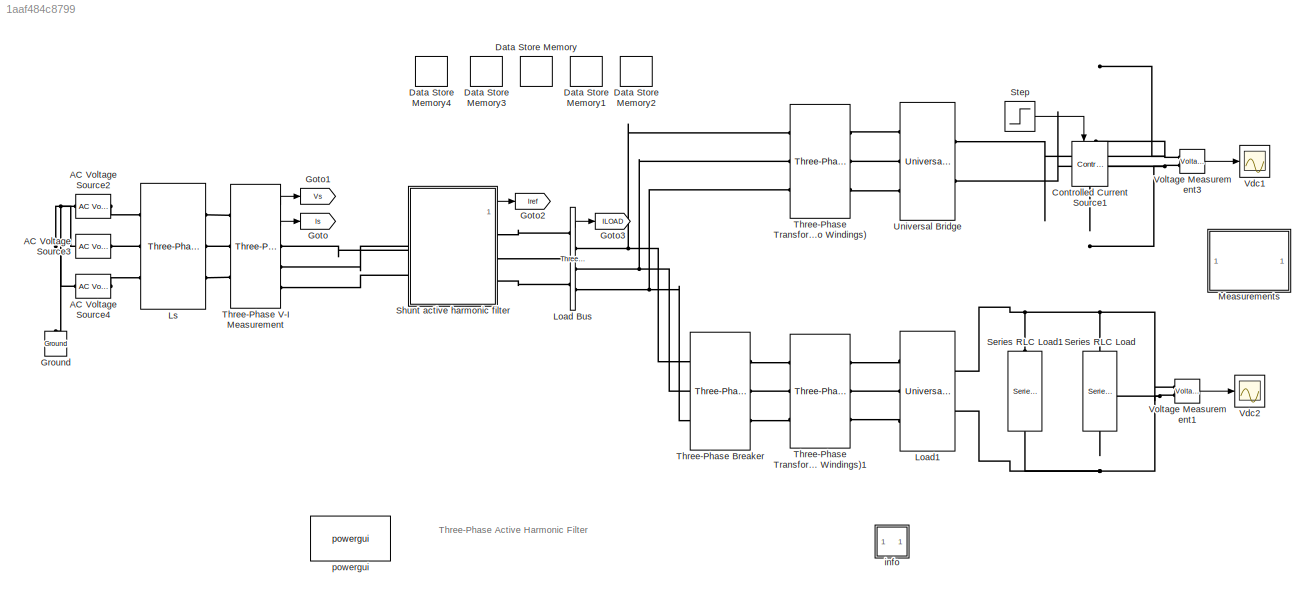
MODEL slx_1aaf484c8799
KIND model
CONFIG AbsTol = auto
CONFIG EnableMultiTasking = off
CONFIG FixedStep = auto
CONFIG MaxStep = auto
CONFIG MinStep = auto
CONFIG RelTol = 1e-3
CONFIG SampleTimeConstraint = Unconstrained
CONFIG Solver = VariableStepAuto
CONFIG SolverName = VariableStepAuto
CONFIG StartTime = 0.0
CONFIG StopTime = 0.5
BLOCK [Reference] AC Voltage Source2  REF=powerlib/Electrical
Sources/AC Voltage Source
  Ports = [0, 0, 0, 0, 0, 1, 1]
  SourceBlock = powerlib/Electrical\nSources/AC Voltage Source
  SourceProductBaseCode = PS
  SourceProductName = Simscape Electrical
  SourceType = AC Voltage Source
BLOCK [Reference] AC Voltage Source3  REF=powerlib/Electrical
Sources/AC Voltage Source
  Ports = [0, 0, 0, 0, 0, 1, 1]
  SourceBlock = powerlib/Electrical\nSources/AC Voltage Source
  SourceProductBaseCode = PS
  SourceProductName = Simscape Electrical
  SourceType = AC Voltage Source
BLOCK [Reference] AC Voltage Source4  REF=powerlib/Electrical
Sources/AC Voltage Source
  Ports = [0, 0, 0, 0, 0, 1, 1]
  SourceBlock = powerlib/Electrical\nSources/AC Voltage Source
  SourceProductBaseCode = PS
  SourceProductName = Simscape Electrical
  SourceType = AC Voltage Source
BLOCK [Reference] Controlled Current Source1  REF=powerlib/Electrical
Sources/Controlled Current Source
  Ports = [1, 0, 0, 0, 0, 1, 1]
  SourceBlock = powerlib/Electrical\nSources/Controlled Current Source
  SourceProductBaseCode = PS
  SourceProductName = Simscape Electrical
  SourceType = Controlled Current Source
BLOCK [DataStoreMemory] Data Store Memory
  DataStoreName = L
  InitialValue = L
  OutDataTypeStr = double
  ReadBeforeWriteMsg = warning
  ShowAdditionalParam = off
  SignalType = real
  WriteAfterReadMsg = warning
  WriteAfterWriteMsg = warning
BLOCK [DataStoreMemory] Data Store Memory1
  DataStoreName = Ts
  InitialValue = Ts
  OutDataTypeStr = double
  ReadBeforeWriteMsg = warning
  ShowAdditionalParam = off
  SignalType = real
  WriteAfterReadMsg = warning
  WriteAfterWriteMsg = warning
BLOCK [DataStoreMemory] Data Store Memory2
  DataStoreName = states
  InitialValue = states
  OutDataTypeStr = double
  ReadBeforeWriteMsg = warning
  ShowAdditionalParam = off
  SignalType = real
  VectorParams1D = off
  WriteAfterReadMsg = warning
  WriteAfterWriteMsg = warning
BLOCK [DataStoreMemory] Data Store Memory3
  DataStoreName = v
  InitialValue = v
  OutDataTypeStr = double
  ReadBeforeWriteMsg = warning
  ShowAdditionalParam = off
  SignalType = complex
  WriteAfterReadMsg = warning
  WriteAfterWriteMsg = warning
BLOCK [DataStoreMemory] Data Store Memory4
  DataStoreName = R
  InitialValue = R
  OutDataTypeStr = double
  ReadBeforeWriteMsg = warning
  ShowAdditionalParam = off
  SignalType = real
  WriteAfterReadMsg = warning
  WriteAfterWriteMsg = warning
BLOCK [Goto] Goto
  GotoTag = Is
  TagVisibility = global
BLOCK [Goto] Goto1
  GotoTag = Vs
  TagVisibility = global
BLOCK [Goto] Goto2
  GotoTag = Iref
  TagVisibility = global
BLOCK [Goto] Goto3
  GotoTag = ILOAD
  TagVisibility = global
BLOCK [Reference] Ground  REF=powerlib/Elements/Ground
  Ports = [0, 0, 0, 0, 0, 1]
  SourceBlock = powerlib/Elements/Ground
  SourceProductBaseCode = PS
  SourceProductName = Simscape Electrical
  SourceType = Ground
BLOCK [Reference] Load Bus  REF=powerlib/Measurements/Three-Phase
V-I Measurement
  Ports = [0, 1, 0, 0, 0, 3, 3]
  SourceBlock = powerlib/Measurements/Three-Phase\nV-I Measurement
  SourceProductBaseCode = PS
  SourceProductName = Simscape Electrical
  SourceType = Three-Phase VI Measurement
BLOCK [Reference] Load1  REF=powerlib/Power
Electronics/Universal Bridge
  Ports = [0, 0, 0, 0, 0, 3, 2]
  SourceBlock = powerlib/Power\nElectronics/Universal Bridge
  SourceProductBaseCode = PS
  SourceProductName = Simscape Electrical
  SourceType = Universal Bridge
BLOCK [Reference] Ls  REF=powerlib/Elements/Three-Phase
Series RLC Branch
  AttributesFormatString = \n
  Ports = [0, 0, 0, 0, 0, 3, 3]
  SourceBlock = powerlib/Elements/Three-Phase\nSeries RLC Branch
  SourceProductBaseCode = PS
  SourceProductName = Simscape Electrical
  SourceType = Three-Phase Series RLC Branch
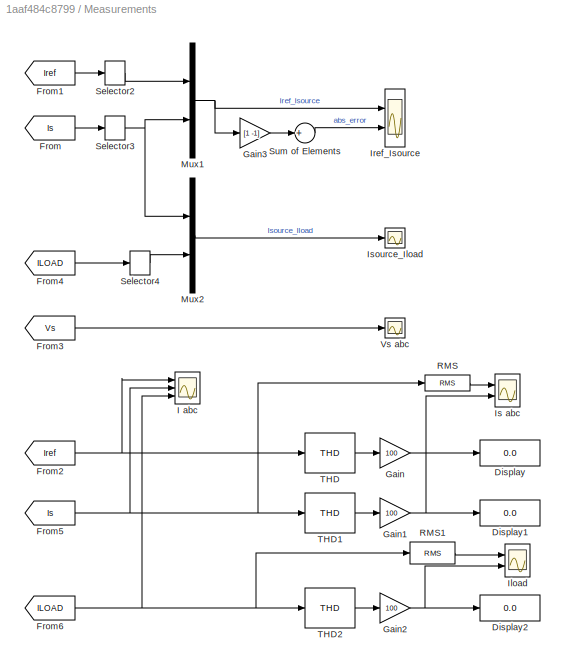
BLOCK [SubSystem] Measurements
  Ports = []
  RequestExecContextInheritance = off
BLOCK [Display] Measurements/Display
  Decimation = 1
  Ports = [1]
BLOCK [Display] Measurements/Display1
  Decimation = 2
  Ports = [1]
BLOCK [Display] Measurements/Display2
  Decimation = 2
  Ports = [1]
BLOCK [From] Measurements/From
  CloseFcn = tagdialog Close
  GotoTag = Is
  TagVisibility = global
BLOCK [From] Measurements/From1
  CloseFcn = tagdialog Close
  GotoTag = Iref
  TagVisibility = global
BLOCK [From] Measurements/From2
  CloseFcn = tagdialog Close
  GotoTag = Iref
  TagVisibility = global
BLOCK [From] Measurements/From3
  CloseFcn = tagdialog Close
  GotoTag = Vs
  TagVisibility = global
BLOCK [From] Measurements/From4
  CloseFcn = tagdialog Close
  GotoTag = ILOAD
  TagVisibility = global
BLOCK [From] Measurements/From5
  CloseFcn = tagdialog Close
  GotoTag = Is
  TagVisibility = global
BLOCK [From] Measurements/From6
  CloseFcn = tagdialog Close
  GotoTag = ILOAD
  TagVisibility = global
BLOCK [Gain] Measurements/Gain
  Gain = 100
  OutDataTypeStr = Inherit: Inherit via internal rule
  ParamDataTypeStr = Inherit: Inherit via internal rule
  SaturateOnIntegerOverflow = off
BLOCK [Gain] Measurements/Gain1
  Gain = 100
  OutDataTypeStr = Inherit: Inherit via internal rule
  ParamDataTypeStr = Inherit: Inherit via internal rule
  SaturateOnIntegerOverflow = off
BLOCK [Gain] Measurements/Gain2
  Gain = 100
  OutDataTypeStr = Inherit: Inherit via internal rule
  ParamDataTypeStr = Inherit: Inherit via internal rule
  SaturateOnIntegerOverflow = off
BLOCK [Gain] Measurements/Gain3
  Gain = [1 -1]
  OutDataTypeStr = Inherit: Inherit via internal rule
  ParamDataTypeStr = Inherit: Inherit via internal rule
  SaturateOnIntegerOverflow = off
BLOCK [Scope] Measurements/I abc
  Floating = off
  NumInputPorts = 3
  Ports = [3]
  ScopeSpecificationString = Simulink.scopes.TimeScopeBlockCfg('CurrentConfiguration', extmgr.ConfigurationSet(extmgr.Configuration('Core','General UI',true),extmgr.Configuration('Core','Source UI',true),extmgr.Configuration('Sources','WiredSimulink',true,'DataLoggingSaveFormat','Array','DataLoggingDecimation','1','DataLoggingDecimateData',true,'DataLoggingVariableName','ScopeData1'),extmgr.Configuration('Visuals','Time Domai...<+3500ch>
BLOCK [Scope] Measurements/Iload
  Floating = off
  NumInputPorts = 2
  Ports = [2]
  ScopeSpecificationString = Simulink.scopes.TimeScopeBlockCfg('CurrentConfiguration', extmgr.ConfigurationSet(extmgr.Configuration('Core','General UI',true),extmgr.Configuration('Core','Source UI',true),extmgr.Configuration('Sources','WiredSimulink',true,'DataLoggingSaveFormat','Array','DataLoggingDecimation','1','DataLoggingDecimateData',true,'DataLoggingVariableName','ScopeData2'),extmgr.Configuration('Visuals','Time Domai...<+2724ch>
BLOCK [Scope] Measurements/Iref_Isource
  Floating = off
  NumInputPorts = 2
  Ports = [2]
  ScopeSpecificationString = Simulink.scopes.TimeScopeBlockCfg('CurrentConfiguration', extmgr.ConfigurationSet(extmgr.Configuration('Core','General UI',true),extmgr.Configuration('Core','Source UI',true),extmgr.Configuration('Sources','WiredSimulink',true,'DataLoggingSaveFormat','Array','DataLoggingDecimation','1','DataLoggingDecimateData',true),extmgr.Configuration('Visuals','Time Domain',true,'SerializedDisplays',{struct('M...<+2347ch>
BLOCK [Scope] Measurements/Is abc
  Floating = off
  NumInputPorts = 2
  Ports = [2]
  ScopeSpecificationString = Simulink.scopes.TimeScopeBlockCfg('CurrentConfiguration', extmgr.ConfigurationSet(extmgr.Configuration('Core','General UI',true),extmgr.Configuration('Core','Source UI',true),extmgr.Configuration('Sources','WiredSimulink',true,'DataLoggingSaveFormat','Array','DataLoggingDecimation','1','DataLoggingDecimateData',true,'DataLoggingVariableName','ScopeData1'),extmgr.Configuration('Visuals','Time Domai...<+2724ch>
BLOCK [Scope] Measurements/Isource_Iload
  Floating = off
  NumInputPorts = 1
  Ports = [1]
  ScopeSpecificationString = Simulink.scopes.TimeScopeBlockCfg('CurrentConfiguration', extmgr.ConfigurationSet(extmgr.Configuration('Core','General UI',true),extmgr.Configuration('Core','Source UI',true),extmgr.Configuration('Sources','WiredSimulink',true,'DataLoggingSaveFormat','Array','DataLoggingDecimation','1','DataLoggingDecimateData',true),extmgr.Configuration('Visuals','Time Domain',true,'SerializedDisplays',{struct('M...<+1666ch>
BLOCK [Mux] Measurements/Mux1
  DisplayOption = bar
  Inputs = 2
  Ports = [2, 1]
BLOCK [Mux] Measurements/Mux2
  DisplayOption = bar
  Inputs = 2
  Ports = [2, 1]
BLOCK [Reference] Measurements/RMS  REF=dspstat3/RMS
  Ports = [1, 1]
  SourceBlock = dspstat3/RMS
  SourceProductBaseCode = DS
  SourceProductName = DSP System Toolbox
  SourceType = RMS
  UserDataPersistent = on
BLOCK [Reference] Measurements/RMS1  REF=dspstat3/RMS
  Ports = [1, 1]
  SourceBlock = dspstat3/RMS
  SourceProductBaseCode = DS
  SourceProductName = DSP System Toolbox
  SourceType = RMS
  UserDataPersistent = on
BLOCK [Selector] Measurements/Selector2
  IndexOptions = Index vector (dialog)
  Indices = 1
  InputPortWidth = 3
  OutputSizes = 1
  Ports = [1, 1]
BLOCK [Selector] Measurements/Selector3
  IndexOptions = Index vector (dialog)
  Indices = 1
  InputPortWidth = 3
  OutputSizes = 1
  Ports = [1, 1]
BLOCK [Selector] Measurements/Selector4
  IndexOptions = Index vector (dialog)
  Indices = 1
  InputPortWidth = 3
  OutputSizes = 1
  Ports = [1, 1]
BLOCK [Sum] Measurements/Sum of Elements
  InputSameDT = off
  Inputs = +
  OutDataTypeStr = Inherit: Inherit via internal rule
  Ports = [1, 1]
  SaturateOnIntegerOverflow = off
BLOCK [Reference] Measurements/THD  REF=powerlib_meascontrol/Measurements/THD
  Ports = [1, 1]
  SourceBlock = powerlib_meascontrol/Measurements/THD
  SourceProductBaseCode = PS
  SourceProductName = Simscape Electrical
  SourceType = THD
BLOCK [Reference] Measurements/THD1  REF=powerlib_meascontrol/Measurements/THD
  Ports = [1, 1]
  SourceBlock = powerlib_meascontrol/Measurements/THD
  SourceProductBaseCode = PS
  SourceProductName = Simscape Electrical
  SourceType = THD
BLOCK [Reference] Measurements/THD2  REF=powerlib_meascontrol/Measurements/THD
  Ports = [1, 1]
  SourceBlock = powerlib_meascontrol/Measurements/THD
  SourceProductBaseCode = PS
  SourceProductName = Simscape Electrical
  SourceType = THD
BLOCK [Scope] Measurements/Vs abc
  Floating = off
  NumInputPorts = 1
  Ports = [1]
  ScopeSpecificationString = Simulink.scopes.TimeScopeBlockCfg('CurrentConfiguration', extmgr.ConfigurationSet(extmgr.Configuration('Core','General UI',true),extmgr.Configuration('Core','Source UI',true),extmgr.Configuration('Sources','WiredSimulink',true,'DataLoggingSaveFormat','Array','DataLoggingDecimation','1','DataLoggingDecimateData',true),extmgr.Configuration('Visuals','Time Domain',true,'SerializedDisplays',{struct('M...<+1658ch>
BLOCK [Reference] Series RLC Load  REF=powerlib/Elements/Series RLC Load
  AttributesFormatString = \n
  Ports = [0, 0, 0, 0, 0, 1, 1]
  SourceBlock = powerlib/Elements/Series RLC Load
  SourceProductBaseCode = PS
  SourceProductName = Simscape Electrical
  SourceType = Series RLC Load
BLOCK [Reference] Series RLC Load1  REF=powerlib/Elements/Series RLC Load
  AttributesFormatString = \n
  Ports = [0, 0, 0, 0, 0, 1, 1]
  SourceBlock = powerlib/Elements/Series RLC Load
  SourceProductBaseCode = PS
  SourceProductName = Simscape Electrical
  SourceType = Series RLC Load
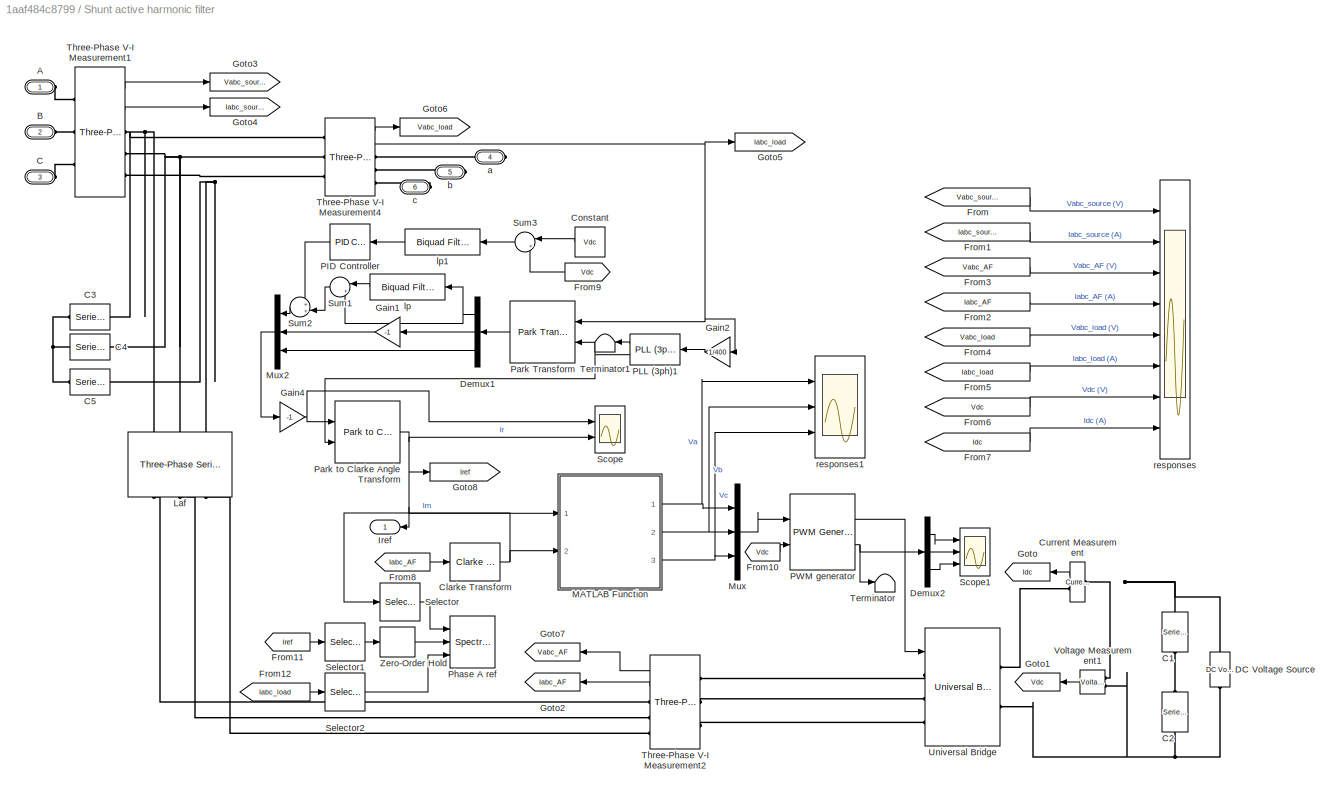
BLOCK [SubSystem] Shunt active harmonic filter
  Ports = [0, 1, 0, 0, 0, 3, 3]
  RequestExecContextInheritance = off
BLOCK [PMIOPort] Shunt active harmonic filter/A
  Side = Left
BLOCK [PMIOPort] Shunt active harmonic filter/B
  Port = 2
  Side = Left
BLOCK [PMIOPort] Shunt active harmonic filter/C
  Port = 3
  Side = Left
BLOCK [Reference] Shunt active harmonic filter/C1  REF=powerlib/Elements/Series RLC Branch
  Ports = [0, 0, 0, 0, 0, 1, 1]
  SourceBlock = powerlib/Elements/Series RLC Branch
  SourceProductBaseCode = PS
  SourceProductName = Simscape Electrical
  SourceType = Series RLC Branch
BLOCK [Reference] Shunt active harmonic filter/C2  REF=powerlib/Elements/Series RLC Branch
  Ports = [0, 0, 0, 0, 0, 1, 1]
  SourceBlock = powerlib/Elements/Series RLC Branch
  SourceProductBaseCode = PS
  SourceProductName = Simscape Electrical
  SourceType = Series RLC Branch
BLOCK [Reference] Shunt active harmonic filter/C3  REF=powerlib/Elements/Series RLC Branch
  Ports = [0, 0, 0, 0, 0, 1, 1]
  SourceBlock = powerlib/Elements/Series RLC Branch
  SourceProductBaseCode = PS
  SourceProductName = Simscape Electrical
  SourceType = Series RLC Branch
BLOCK [Reference] Shunt active harmonic filter/C4  REF=powerlib/Elements/Series RLC Branch
  Ports = [0, 0, 0, 0, 0, 1, 1]
  SourceBlock = powerlib/Elements/Series RLC Branch
  SourceProductBaseCode = PS
  SourceProductName = Simscape Electrical
  SourceType = Series RLC Branch
BLOCK [Reference] Shunt active harmonic filter/C5  REF=powerlib/Elements/Series RLC Branch
  Ports = [0, 0, 0, 0, 0, 1, 1]
  SourceBlock = powerlib/Elements/Series RLC Branch
  SourceProductBaseCode = PS
  SourceProductName = Simscape Electrical
  SourceType = Series RLC Branch
BLOCK [Reference] Shunt active harmonic filter/Clarke Transform  REF=eeTransforms/Clarke Transform
  Ports = [1, 1]
  SourceBlock = eeTransforms/Clarke Transform
  SourceProductBaseCode = PS
  SourceProductName = Simscape Electrical
  SourceType = Clarke Transform
BLOCK [Constant] Shunt active harmonic filter/Constant
  Value = Vdc
BLOCK [Reference] Shunt active harmonic filter/Current Measurement  REF=powerlib/Measurements/Current Measurement
  Ports = [0, 1, 0, 0, 0, 1, 1]
  SourceBlock = powerlib/Measurements/Current Measurement
  SourceProductBaseCode = PS
  SourceProductName = Simscape Electrical
  SourceType = Current Measurement
BLOCK [Reference] Shunt active harmonic filter/DC Voltage Source  REF=powerlib/Electrical
Sources/DC Voltage Source
  Commented = on
  Ports = [0, 0, 0, 0, 0, 1, 1]
  SourceBlock = powerlib/Electrical\nSources/DC Voltage Source
  SourceProductBaseCode = PS
  SourceProductName = Simscape Electrical
  SourceType = DC Voltage Source
BLOCK [Demux] Shunt active harmonic filter/Demux1
  DisplayOption = bar
  Outputs = 3
  Ports = [1, 3]
BLOCK [Demux] Shunt active harmonic filter/Demux2
  DisplayOption = bar
  Outputs = 3
  Ports = [1, 3]
BLOCK [From] Shunt active harmonic filter/From
  CloseFcn = tagdialog Close
  GotoTag = Vabc_source
BLOCK [From] Shunt active harmonic filter/From1
  CloseFcn = tagdialog Close
  GotoTag = Iabc_source
BLOCK [From] Shunt active harmonic filter/From10
  GotoTag = Vdc
  TagVisibility = global
BLOCK [From] Shunt active harmonic filter/From11
  GotoTag = Iref
BLOCK [From] Shunt active harmonic filter/From12
  GotoTag = Iabc_load
BLOCK [From] Shunt active harmonic filter/From2
  CloseFcn = tagdialog Close
  GotoTag = Iabc_AF
BLOCK [From] Shunt active harmonic filter/From3
  CloseFcn = tagdialog Close
  GotoTag = Vabc_AF
BLOCK [From] Shunt active harmonic filter/From4
  CloseFcn = tagdialog Close
  GotoTag = Vabc_load
BLOCK [From] Shunt active harmonic filter/From5
  CloseFcn = tagdialog Close
  GotoTag = Iabc_load
BLOCK [From] Shunt active harmonic filter/From6
  CloseFcn = tagdialog Close
  GotoTag = Vdc
  TagVisibility = global
BLOCK [From] Shunt active harmonic filter/From7
  CloseFcn = tagdialog Close
  GotoTag = Idc
BLOCK [From] Shunt active harmonic filter/From8
  GotoTag = Iabc_AF
BLOCK [From] Shunt active harmonic filter/From9
  GotoTag = Vdc
  TagVisibility = global
BLOCK [Gain] Shunt active harmonic filter/Gain1
  Gain = -1
  OutDataTypeStr = Inherit: Inherit via internal rule
  ParamDataTypeStr = Inherit: Inherit via internal rule
  SaturateOnIntegerOverflow = off
BLOCK [Gain] Shunt active harmonic filter/Gain2
  Gain = 1/400
  OutDataTypeStr = Inherit: Inherit via internal rule
  ParamDataTypeStr = Inherit: Inherit via internal rule
  SaturateOnIntegerOverflow = off
BLOCK [Gain] Shunt active harmonic filter/Gain4
  Gain = -1
  OutDataTypeStr = Inherit: Inherit via internal rule
  ParamDataTypeStr = Inherit: Inherit via internal rule
  SaturateOnIntegerOverflow = off
BLOCK [Goto] Shunt active harmonic filter/Goto
  GotoTag = Idc
BLOCK [Goto] Shunt active harmonic filter/Goto1
  GotoTag = Vdc
  TagVisibility = global
BLOCK [Goto] Shunt active harmonic filter/Goto2
  GotoTag = Iabc_AF
BLOCK [Goto] Shunt active harmonic filter/Goto3
  GotoTag = Vabc_source
BLOCK [Goto] Shunt active harmonic filter/Goto4
  GotoTag = Iabc_source
BLOCK [Goto] Shunt active harmonic filter/Goto5
  GotoTag = Iabc_load
BLOCK [Goto] Shunt active harmonic filter/Goto6
  GotoTag = Vabc_load
BLOCK [Goto] Shunt active harmonic filter/Goto7
  GotoTag = Vabc_AF
BLOCK [Goto] Shunt active harmonic filter/Goto8
  GotoTag = Iref
BLOCK [Outport] Shunt active harmonic filter/Iref
  IconDisplay = Port number
BLOCK [Reference] Shunt active harmonic filter/Laf  REF=powerlib/Elements/Three-Phase
Series RLC Branch
  AttributesFormatString = \n
  Ports = [0, 0, 0, 0, 0, 3, 3]
  SourceBlock = powerlib/Elements/Three-Phase\nSeries RLC Branch
  SourceProductBaseCode = PS
  SourceProductName = Simscape Electrical
  SourceType = Three-Phase Series RLC Branch
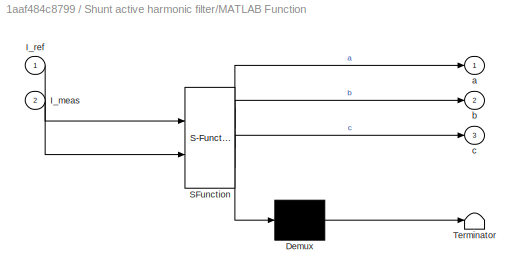
BLOCK [SubSystem] Shunt active harmonic filter/MATLAB Function
  ErrorFcn = Stateflow.Translate.translate
  PermitHierarchicalResolution = ExplicitOnly
  Ports = [2, 3]
  RequestExecContextInheritance = off
  SFBlockType = MATLAB Function
  SystemSampleTime = Ts
  TreatAsAtomicUnit = on
BLOCK [Demux] Shunt active harmonic filter/MATLAB Function/ Demux 
  Outputs = 1
  Ports = [1, 1]
BLOCK [S-Function] Shunt active harmonic filter/MATLAB Function/ SFunction 
  EnableBusSupport = on
  FunctionName = sf_sfun
  PortCounts = [2 4]
  Ports = [2, 4]
  SFcnIsStateOwnerBlock = off
  SFunctionDeploymentMode = off
  Tag = Stateflow S-Function power_active_filter_mpc 2
BLOCK [Terminator] Shunt active harmonic filter/MATLAB Function/ Terminator 
BLOCK [Inport] Shunt active harmonic filter/MATLAB Function/I_meas
  IconDisplay = Port number
  Port = 2
BLOCK [Inport] Shunt active harmonic filter/MATLAB Function/I_ref
  IconDisplay = Port number
BLOCK [Outport] Shunt active harmonic filter/MATLAB Function/a
  IconDisplay = Port number
BLOCK [Outport] Shunt active harmonic filter/MATLAB Function/b
  IconDisplay = Port number
  Port = 2
BLOCK [Outport] Shunt active harmonic filter/MATLAB Function/c
  IconDisplay = Port number
  Port = 3
BLOCK [Mux] Shunt active harmonic filter/Mux
  DisplayOption = bar
  Inputs = 3
  Ports = [3, 1]
BLOCK [Mux] Shunt active harmonic filter/Mux2
  DisplayOption = bar
  Inputs = 3
  Ports = [3, 1]
BLOCK [Reference] Shunt active harmonic filter/PID Controller  REF=simulink/Continuous/PID Controller
  Ports = [1, 1]
  SourceBlock = simulink/Continuous/PID Controller
  SourceProductBaseCode = SL
  SourceProductName = Simulink
  SourceType = PID 1dof
BLOCK [Reference] Shunt active harmonic filter/PLL (3ph)1  REF=powerlib_meascontrol/PLL/PLL
(3ph)
  Ports = [1, 2]
  SourceBlock = powerlib_meascontrol/PLL/PLL\n(3ph)
  SourceProductBaseCode = PS
  SourceProductName = Simscape Electrical
  SourceType = PLL (3ph)
BLOCK [Reference] Shunt active harmonic filter/PWM generator  REF=eePwmGeneratorTwoLevel/PWM Generator
(Three-phase, Two-level)
  Ports = [2, 2]
  SourceBlock = eePwmGeneratorTwoLevel/PWM Generator\n(Three-phase, Two-level)
  SourceProductBaseCode = PS
  SourceProductName = Simscape Electrical
  SourceType = PWM Generator (three-phase, two-level)
BLOCK [Reference] Shunt active harmonic filter/Park Transform  REF=eeTransforms/Park Transform
  Ports = [2, 1]
  SourceBlock = eeTransforms/Park Transform
  SourceProductBaseCode = PS
  SourceProductName = Simscape Electrical
  SourceType = Park Transform
BLOCK [Reference] Shunt active harmonic filter/Park to Clarke Angle Transform  REF=eeTransforms/Park to Clarke
Angle Transform
  Ports = [2, 1]
  SourceBlock = eeTransforms/Park to Clarke\nAngle Transform
  SourceProductBaseCode = PS
  SourceProductName = Simscape Electrical
  SourceType = Park to Clarke Angle Transform
BLOCK [SpectrumAnalyzer] Shunt active harmonic filter/Phase A ref
  Commented = on
  NumInputPorts = 3
  Ports = [3]
  ScopeSpecificationString = spbscopes.SpectrumAnalyzerBlockCfg('CurrentConfiguration', extmgr.ConfigurationSet(extmgr.Configuration('Core','General UI',true),extmgr.Configuration('Core','Source UI',true),extmgr.Configuration('Sources','WiredSimulink',true),extmgr.Configuration('Sources','SimulinkEvent',false),extmgr.Configuration('Sources','Simulink',false),extmgr.Configuration('Sources','SPTool',false),extmgr.Configuration(...<+4658ch>
BLOCK [Scope] Shunt active harmonic filter/Scope
  Floating = off
  NumInputPorts = 2
  Ports = [2]
  ScopeSpecificationString = Simulink.scopes.TimeScopeBlockCfg('CurrentConfiguration', extmgr.ConfigurationSet(extmgr.Configuration('Core','General UI',true),extmgr.Configuration('Core','Source UI',true),extmgr.Configuration('Sources','WiredSimulink',true,'DataLoggingVariableName','ScopeData1'),extmgr.Configuration('Visuals','Time Domain',true,'SerializedDisplays',{struct('MinYLimReal','-1.00000','MaxYLimReal','1.00000','YLab...<+3240ch>
BLOCK [Scope] Shunt active harmonic filter/Scope1
  Floating = off
  NumInputPorts = 3
  Ports = [3]
  ScopeSpecificationString = Simulink.scopes.TimeScopeBlockCfg('CurrentConfiguration', extmgr.ConfigurationSet(extmgr.Configuration('Core','General UI',true),extmgr.Configuration('Core','Source UI',true),extmgr.Configuration('Sources','WiredSimulink',true,'DataLoggingVariableName','ScopeData1'),extmgr.Configuration('Visuals','Time Domain',true,'SerializedDisplays',{struct('MinYLimReal','-1.25','MaxYLimReal','1.25','YLabelReal...<+3175ch>
BLOCK [Selector] Shunt active harmonic filter/Selector
  IndexOptions = Index vector (dialog)
  Indices = 1
  InputPortWidth = 3
  OutputSizes = 1
  Ports = [1, 1]
BLOCK [Selector] Shunt active harmonic filter/Selector1
  IndexOptions = Index vector (dialog)
  Indices = 1
  InputPortWidth = 3
  OutputSizes = 1
  Ports = [1, 1]
BLOCK [Selector] Shunt active harmonic filter/Selector2
  IndexOptions = Index vector (dialog)
  Indices = 1
  InputPortWidth = 3
  OutputSizes = 1
  Ports = [1, 1]
BLOCK [Sum] Shunt active harmonic filter/Sum1
  IconShape = round
  InputSameDT = off
  Inputs = |+-
  OutDataTypeStr = Inherit: Inherit via internal rule
  Ports = [2, 1]
  SaturateOnIntegerOverflow = off
BLOCK [Sum] Shunt active harmonic filter/Sum2
  IconShape = round
  InputSameDT = off
  Inputs = ++|
  OutDataTypeStr = Inherit: Inherit via internal rule
  Ports = [2, 1]
  SaturateOnIntegerOverflow = off
BLOCK [Sum] Shunt active harmonic filter/Sum3
  IconShape = round
  InputSameDT = off
  Inputs = |+-
  OutDataTypeStr = Inherit: Inherit via internal rule
  Ports = [2, 1]
  SaturateOnIntegerOverflow = off
BLOCK [Terminator] Shunt active harmonic filter/Terminator
BLOCK [Terminator] Shunt active harmonic filter/Terminator1
BLOCK [Reference] Shunt active harmonic filter/Three-Phase V-I Measurement1  REF=powerlib/Measurements/Three-Phase
V-I Measurement
  Ports = [0, 2, 0, 0, 0, 3, 3]
  SourceBlock = powerlib/Measurements/Three-Phase\nV-I Measurement
  SourceProductBaseCode = PS
  SourceProductName = Simscape Electrical
  SourceType = Three-Phase VI Measurement
BLOCK [Reference] Shunt active harmonic filter/Three-Phase V-I Measurement2  REF=powerlib/Measurements/Three-Phase
V-I Measurement
  Ports = [0, 2, 0, 0, 0, 3, 3]
  SourceBlock = powerlib/Measurements/Three-Phase\nV-I Measurement
  SourceProductBaseCode = PS
  SourceProductName = Simscape Electrical
  SourceType = Three-Phase VI Measurement
BLOCK [Reference] Shunt active harmonic filter/Three-Phase V-I Measurement4  REF=powerlib/Measurements/Three-Phase
V-I Measurement
  Ports = [0, 2, 0, 0, 0, 3, 3]
  SourceBlock = powerlib/Measurements/Three-Phase\nV-I Measurement
  SourceProductBaseCode = PS
  SourceProductName = Simscape Electrical
  SourceType = Three-Phase VI Measurement
BLOCK [Reference] Shunt active harmonic filter/Universal Bridge  REF=powerlib/Power
Electronics/Universal Bridge
  Ports = [1, 0, 0, 0, 0, 3, 2]
  SourceBlock = powerlib/Power\nElectronics/Universal Bridge
  SourceProductBaseCode = PS
  SourceProductName = Simscape Electrical
  SourceType = Universal Bridge
BLOCK [Reference] Shunt active harmonic filter/Voltage Measurement1  REF=powerlib/Measurements/Voltage Measurement
  Ports = [0, 1, 0, 0, 0, 2]
  SourceBlock = powerlib/Measurements/Voltage Measurement
  SourceProductBaseCode = PS
  SourceProductName = Simscape Electrical
  SourceType = Voltage Measurement
BLOCK [ZeroOrderHold] Shunt active harmonic filter/Zero-Order Hold
  SampleTime = -1
BLOCK [PMIOPort] Shunt active harmonic filter/a
  Port = 4
  Side = Right
BLOCK [PMIOPort] Shunt active harmonic filter/b
  Port = 5
  Side = Right
BLOCK [PMIOPort] Shunt active harmonic filter/c
  Port = 6
  Side = Right
BLOCK [Reference] Shunt active harmonic filter/lp  REF=dsparch4/Biquad Filter
  Ports = [1, 1]
  SourceBlock = dsparch4/Biquad Filter
  SourceProductBaseCode = DS
  SourceProductName = DSP System Toolbox
  SourceType = Biquad Filter
  Tag = BlockMethodSubSystem
  UserDataPersistent = on
BLOCK [Reference] Shunt active harmonic filter/lp1  REF=dsparch4/Biquad Filter
  Ports = [1, 1]
  SourceBlock = dsparch4/Biquad Filter
  SourceProductBaseCode = DS
  SourceProductName = DSP System Toolbox
  SourceType = Biquad Filter
  Tag = BlockMethodSubSystem
  UserDataPersistent = on
BLOCK [Scope] Shunt active harmonic filter/responses
  Floating = off
  NumInputPorts = 8
  Ports = [8]
  ScopeSpecificationString = Simulink.scopes.TimeScopeBlockCfg('CurrentConfiguration', extmgr.ConfigurationSet(extmgr.Configuration('Core','General UI',true),extmgr.Configuration('Core','Source UI',true),extmgr.Configuration('Sources','WiredSimulink',true,'DataLoggingSaveFormat','StructureWithTime','DataLoggingDecimation','1','DataLoggingDecimateData',true,'DataLogging',true,'DataLoggingVariableName','Filteroutput'),extmgr.Co...<+6786ch>
BLOCK [Scope] Shunt active harmonic filter/responses1
  Floating = off
  NumInputPorts = 3
  Ports = [3]
  ScopeSpecificationString = Simulink.scopes.TimeScopeBlockCfg('CurrentConfiguration', extmgr.ConfigurationSet(extmgr.Configuration('Core','General UI',true),extmgr.Configuration('Core','Source UI',true),extmgr.Configuration('Sources','WiredSimulink',true,'DataLoggingSaveFormat','StructureWithTime','DataLoggingDecimation','1','DataLoggingDecimateData',true,'DataLoggingVariableName','Gate','DataLogging',true),extmgr.Configurat...<+2920ch>
BLOCK [Step] Step
  After = 160
  Before = 100
  SampleTime = 0
  Time = 0.10
BLOCK [Reference] Three-Phase Breaker  REF=powerlib/Elements/Three-Phase Breaker
  Ports = [0, 0, 0, 0, 0, 3, 3]
  SourceBlock = powerlib/Elements/Three-Phase Breaker
  SourceProductBaseCode = PS
  SourceProductName = Simscape Electrical
  SourceType = Three-Phase Breaker
BLOCK [Reference] Three-Phase Transformer (Two Windings)  REF=powerlib/Elements/Three-Phase
Transformer
(Two Windings)
  Ports = [0, 0, 0, 0, 0, 3, 3]
  SourceBlock = powerlib/Elements/Three-Phase\nTransformer\n(Two Windings)
  SourceProductBaseCode = PS
  SourceProductName = Simscape Electrical
  SourceType = Three-Phase Transformer (Two Windings)
BLOCK [Reference] Three-Phase Transformer (Two Windings)1  REF=powerlib/Elements/Three-Phase
Transformer
(Two Windings)
  Ports = [0, 0, 0, 0, 0, 3, 3]
  SourceBlock = powerlib/Elements/Three-Phase\nTransformer\n(Two Windings)
  SourceProductBaseCode = PS
  SourceProductName = Simscape Electrical
  SourceType = Three-Phase Transformer (Two Windings)
BLOCK [Reference] Three-Phase V-I Measurement  REF=powerlib/Measurements/Three-Phase
V-I Measurement
  Ports = [0, 2, 0, 0, 0, 3, 3]
  SourceBlock = powerlib/Measurements/Three-Phase\nV-I Measurement
  SourceProductBaseCode = PS
  SourceProductName = Simscape Electrical
  SourceType = Three-Phase VI Measurement
BLOCK [Reference] Universal Bridge  REF=powerlib/Power
Electronics/Universal Bridge
  Ports = [0, 0, 0, 0, 0, 3, 2]
  SourceBlock = powerlib/Power\nElectronics/Universal Bridge
  SourceProductBaseCode = PS
  SourceProductName = Simscape Electrical
  SourceType = Universal Bridge
BLOCK [Scope] Vdc1
  Floating = off
  NumInputPorts = 1
  Ports = [1]
  ScopeSpecificationString = Simulink.scopes.TimeScopeBlockCfg('CurrentConfiguration', extmgr.ConfigurationSet(extmgr.Configuration('Core','General UI',true),extmgr.Configuration('Core','Source UI',true),extmgr.Configuration('Sources','WiredSimulink',true,'DataLoggingSaveFormat','Array','DataLoggingDecimation','1','DataLoggingDecimateData',true,'DataLoggingVariableName','ScopeData1'),extmgr.Configuration('Visuals','Time Domai...<+1794ch>
BLOCK [Scope] Vdc2
  Floating = off
  NumInputPorts = 1
  Ports = [1]
  ScopeSpecificationString = Simulink.scopes.TimeScopeBlockCfg('CurrentConfiguration', extmgr.ConfigurationSet(extmgr.Configuration('Core','General UI',true),extmgr.Configuration('Core','Source UI',true),extmgr.Configuration('Sources','WiredSimulink',true,'DataLoggingSaveFormat','Array','DataLoggingDecimation','1','DataLoggingDecimateData',true,'DataLoggingVariableName','ScopeData2'),extmgr.Configuration('Visuals','Time Domai...<+1798ch>
BLOCK [Reference] Voltage Measurement1  REF=powerlib/Measurements/Voltage Measurement
  Ports = [0, 1, 0, 0, 0, 2]
  SourceBlock = powerlib/Measurements/Voltage Measurement
  SourceProductBaseCode = PS
  SourceProductName = Simscape Electrical
  SourceType = Voltage Measurement
BLOCK [Reference] Voltage Measurement3  REF=powerlib/Measurements/Voltage Measurement
  Ports = [0, 1, 0, 0, 0, 2]
  SourceBlock = powerlib/Measurements/Voltage Measurement
  SourceProductBaseCode = PS
  SourceProductName = Simscape Electrical
  SourceType = Voltage Measurement
BLOCK [SubSystem] info
  OpenFcn = showdemo(bdroot(gcb))
  Ports = []
  RequestExecContextInheritance = off
BLOCK [Reference] powergui  REF=powerlib/powergui
  Ports = []
  SourceBlock = powerlib/powergui
  SourceProductBaseCode = PS
  SourceProductName = Simscape Electrical
  SourceType = PSB option menu block
ANNOTATION (root): Three-Phase Active Harmonic Filter
LINE Load Bus:1 -> Goto3:1
LINE Measurements/From1:1 -> Measurements/Selector2:1
NET Measurements/From2:1 -> Measurements/I abc:1, Measurements/THD:1
LINE Measurements/From3:1 -> Measurements/Vs abc:1
LINE Measurements/From4:1 -> Measurements/Selector4:1
NET Measurements/From5:1 -> Measurements/I abc:2, Measurements/RMS:1, Measurements/THD1:1
NET Measurements/From6:1 -> Measurements/I abc:3, Measurements/RMS1:1, Measurements/THD2:1
LINE Measurements/From:1 -> Measurements/Selector3:1
NET Measurements/Gain1:1 -> Measurements/Display1:1, Measurements/Is abc:2
NET Measurements/Gain2:1 -> Measurements/Display2:1, Measurements/Iload:2
LINE Measurements/Gain3:1 -> Measurements/Sum of Elements:1
LINE Measurements/Gain:1 -> Measurements/Display:1
NET Measurements/Mux1:1 -> Measurements/Gain3:1, Measurements/Iref_Isource:1
LINE Measurements/Mux2:1 -> Measurements/Isource_Iload:1
LINE Measurements/RMS1:1 -> Measurements/Iload:1
LINE Measurements/RMS:1 -> Measurements/Is abc:1
LINE Measurements/Selector2:1 -> Measurements/Mux1:1
NET Measurements/Selector3:1 -> Measurements/Mux1:2, Measurements/Mux2:1
LINE Measurements/Selector4:1 -> Measurements/Mux2:2
LINE Measurements/Sum of Elements:1 -> Measurements/Iref_Isource:2
LINE Measurements/THD1:1 -> Measurements/Gain1:1
LINE Measurements/THD2:1 -> Measurements/Gain2:1
LINE Measurements/THD:1 -> Measurements/Gain:1
NET Shunt active harmonic filter/Clarke Transform:1 -> Shunt active harmonic filter/MATLAB Function:2, Shunt active harmonic filter/Selector:1
LINE Shunt active harmonic filter/Constant:1 -> Shunt active harmonic filter/Sum3:1
LINE Shunt active harmonic filter/Current Measurement:1 -> Shunt active harmonic filter/Goto:1
NET Shunt active harmonic filter/Demux1:1 -> Shunt active harmonic filter/Sum1:2, Shunt active harmonic filter/lp:1
LINE Shunt active harmonic filter/Demux1:2 -> Shunt active harmonic filter/Gain1:1
LINE Shunt active harmonic filter/Demux1:3 -> Shunt active harmonic filter/Mux2:3
LINE Shunt active harmonic filter/Demux2:1 -> Shunt active harmonic filter/Scope1:1
LINE Shunt active harmonic filter/Demux2:2 -> Shunt active harmonic filter/Scope1:2
LINE Shunt active harmonic filter/Demux2:3 -> Shunt active harmonic filter/Scope1:3
LINE Shunt active harmonic filter/From10:1 -> Shunt active harmonic filter/PWM generator:2
LINE Shunt active harmonic filter/From11:1 -> Shunt active harmonic filter/Selector1:1
LINE Shunt active harmonic filter/From12:1 -> Shunt active harmonic filter/Selector2:1
LINE Shunt active harmonic filter/From1:1 -> Shunt active harmonic filter/responses:2
LINE Shunt active harmonic filter/From2:1 -> Shunt active harmonic filter/responses:4
LINE Shunt active harmonic filter/From3:1 -> Shunt active harmonic filter/responses:3
LINE Shunt active harmonic filter/From4:1 -> Shunt active harmonic filter/responses:5
LINE Shunt active harmonic filter/From5:1 -> Shunt active harmonic filter/responses:6
LINE Shunt active harmonic filter/From6:1 -> Shunt active harmonic filter/responses:7
LINE Shunt active harmonic filter/From7:1 -> Shunt active harmonic filter/responses:8
LINE Shunt active harmonic filter/From8:1 -> Shunt active harmonic filter/Clarke Transform:1
LINE Shunt active harmonic filter/From9:1 -> Shunt active harmonic filter/Sum3:2
LINE Shunt active harmonic filter/From:1 -> Shunt active harmonic filter/responses:1
LINE Shunt active harmonic filter/Gain1:1 -> Shunt active harmonic filter/Mux2:2
LINE Shunt active harmonic filter/Gain2:1 -> Shunt active harmonic filter/PLL (3ph)1:1
NET Shunt active harmonic filter/Gain4:1 -> Shunt active harmonic filter/Park to Clarke Angle Transform:1, Shunt active harmonic filter/Scope:1
NET Shunt active harmonic filter/MATLAB Function:1 -> Shunt active harmonic filter/Mux:1, Shunt active harmonic filter/responses1:1
NET Shunt active harmonic filter/MATLAB Function:2 -> Shunt active harmonic filter/Mux:2, Shunt active harmonic filter/responses1:2
NET Shunt active harmonic filter/MATLAB Function:3 -> Shunt active harmonic filter/Mux:3, Shunt active harmonic filter/responses1:3
LINE Shunt active harmonic filter/Mux2:1 -> Shunt active harmonic filter/Gain4:1
LINE Shunt active harmonic filter/Mux:1 -> Shunt active harmonic filter/PWM generator:1
LINE Shunt active harmonic filter/PID Controller:1 -> Shunt active harmonic filter/Sum2:1
LINE Shunt active harmonic filter/PLL (3ph)1:1 -> Shunt active harmonic filter/Terminator1:1
NET Shunt active harmonic filter/PLL (3ph)1:2 -> Shunt active harmonic filter/Park Transform:2, Shunt active harmonic filter/Park to Clarke Angle Transform:2
LINE Shunt active harmonic filter/PWM generator:1 -> Shunt active harmonic filter/Universal Bridge:1
NET Shunt active harmonic filter/PWM generator:2 -> Shunt active harmonic filter/Demux2:1, Shunt active harmonic filter/Terminator:1
LINE Shunt active harmonic filter/Park Transform:1 -> Shunt active harmonic filter/Demux1:1
NET Shunt active harmonic filter/Park to Clarke Angle Transform:1 -> Shunt active harmonic filter/Goto8:1, Shunt active harmonic filter/Iref:1, Shunt active harmonic filter/MATLAB Function:1, Shunt active harmonic filter/Scope:2
LINE Shunt active harmonic filter/Selector1:1 -> Shunt active harmonic filter/Zero-Order Hold:1
LINE Shunt active harmonic filter/Selector2:1 -> Shunt active harmonic filter/Phase A ref:3
LINE Shunt active harmonic filter/Selector:1 -> Shunt active harmonic filter/Phase A ref:1
LINE Shunt active harmonic filter/Sum1:1 -> Shunt active harmonic filter/Sum2:2
LINE Shunt active harmonic filter/Sum2:1 -> Shunt active harmonic filter/Mux2:1
LINE Shunt active harmonic filter/Sum3:1 -> Shunt active harmonic filter/lp1:1
LINE Shunt active harmonic filter/Three-Phase V-I Measurement1:1 -> Shunt active harmonic filter/Goto3:1
LINE Shunt active harmonic filter/Three-Phase V-I Measurement1:2 -> Shunt active harmonic filter/Goto4:1
LINE Shunt active harmonic filter/Three-Phase V-I Measurement2:1 -> Shunt active harmonic filter/Goto7:1
LINE Shunt active harmonic filter/Three-Phase V-I Measurement2:2 -> Shunt active harmonic filter/Goto2:1
LINE Shunt active harmonic filter/Three-Phase V-I Measurement4:1 -> Shunt active harmonic filter/Goto6:1
NET Shunt active harmonic filter/Three-Phase V-I Measurement4:2 -> Shunt active harmonic filter/Gain2:1, Shunt active harmonic filter/Goto5:1, Shunt active harmonic filter/Park Transform:1
LINE Shunt active harmonic filter/Voltage Measurement1:1 -> Shunt active harmonic filter/Goto1:1
LINE Shunt active harmonic filter/Zero-Order Hold:1 -> Shunt active harmonic filter/Phase A ref:2
LINE Shunt active harmonic filter/lp1:1 -> Shunt active harmonic filter/PID Controller:1
LINE Shunt active harmonic filter/lp:1 -> Shunt active harmonic filter/Sum1:1
LINE Shunt active harmonic filter:1 -> Goto2:1
LINE Step:1 -> Controlled Current Source1:1
LINE Three-Phase V-I Measurement:1 -> Goto1:1
LINE Three-Phase V-I Measurement:2 -> Goto:1
LINE Voltage Measurement1:1 -> Vdc2:1
LINE Voltage Measurement3:1 -> Vdc1:1
PNET net1: AC Voltage Source2:LConn1 -- AC Voltage Source3:LConn1 -- AC Voltage Source4:LConn1 -- Ground:LConn1
PLINE AC Voltage Source2:RConn1 -- Ls:LConn1
PLINE AC Voltage Source3:RConn1 -- Ls:LConn2
PLINE AC Voltage Source4:RConn1 -- Ls:LConn3
PNET net2: Controlled Current Source1:LConn1 -- Universal Bridge:RConn1 -- Voltage Measurement3:LConn1
PNET net3: Controlled Current Source1:RConn1 -- Universal Bridge:RConn2 -- Voltage Measurement3:LConn2
PLINE Load Bus:LConn1 -- Shunt active harmonic filter:RConn1
PLINE Load Bus:LConn2 -- Shunt active harmonic filter:RConn2
PLINE Load Bus:LConn3 -- Shunt active harmonic filter:RConn3
PNET net4: Load Bus:RConn1 -- Three-Phase Breaker:LConn1 -- Three-Phase Transformer (Two Windings):LConn1
PNET net5: Load Bus:RConn2 -- Three-Phase Breaker:LConn2 -- Three-Phase Transformer (Two Windings):LConn2
PNET net6: Load Bus:RConn3 -- Three-Phase Breaker:LConn3 -- Three-Phase Transformer (Two Windings):LConn3
PLINE Load1:LConn1 -- Three-Phase Transformer (Two Windings)1:RConn1
PLINE Load1:LConn2 -- Three-Phase Transformer (Two Windings)1:RConn2
PLINE Load1:LConn3 -- Three-Phase Transformer (Two Windings)1:RConn3
PNET net7: Load1:RConn1 -- Series RLC Load1:LConn1 -- Series RLC Load:LConn1 -- Voltage Measurement1:LConn1
PNET net8: Load1:RConn2 -- Series RLC Load1:RConn1 -- Series RLC Load:RConn1 -- Voltage Measurement1:LConn2
PLINE Ls:RConn1 -- Three-Phase V-I Measurement:LConn1
PLINE Ls:RConn2 -- Three-Phase V-I Measurement:LConn2
PLINE Ls:RConn3 -- Three-Phase V-I Measurement:LConn3
PLINE Shunt active harmonic filter/A:RConn1 -- Shunt active harmonic filter/Three-Phase V-I Measurement1:LConn1
PLINE Shunt active harmonic filter/B:RConn1 -- Shunt active harmonic filter/Three-Phase V-I Measurement1:LConn2
PNET net9: Shunt active harmonic filter/C1:LConn1 -- Shunt active harmonic filter/Current Measurement:LConn1 -- Shunt active harmonic filter/DC Voltage Source:RConn1 -- Shunt active harmonic filter/Voltage Measurement1:LConn1
PLINE Shunt active harmonic filter/C1:RConn1 -- Shunt active harmonic filter/C2:LConn1
PNET net10: Shunt active harmonic filter/C2:RConn1 -- Shunt active harmonic filter/DC Voltage Source:LConn1 -- Shunt active harmonic filter/Universal Bridge:RConn2 -- Shunt active harmonic filter/Voltage Measurement1:LConn2
PNET net11: Shunt active harmonic filter/C3:LConn1 -- Shunt active harmonic filter/Laf:RConn1 -- Shunt active harmonic filter/Three-Phase V-I Measurement1:RConn1 -- Shunt active harmonic filter/Three-Phase V-I Measurement4:LConn1
PNET net12: Shunt active harmonic filter/C3:RConn1 -- Shunt active harmonic filter/C4:RConn1 -- Shunt active harmonic filter/C5:RConn1
PNET net13: Shunt active harmonic filter/C4:LConn1 -- Shunt active harmonic filter/Laf:RConn2 -- Shunt active harmonic filter/Three-Phase V-I Measurement1:RConn2 -- Shunt active harmonic filter/Three-Phase V-I Measurement4:LConn2
PNET net14: Shunt active harmonic filter/C5:LConn1 -- Shunt active harmonic filter/Laf:RConn3 -- Shunt active harmonic filter/Three-Phase V-I Measurement1:RConn3 -- Shunt active harmonic filter/Three-Phase V-I Measurement4:LConn3
PLINE Shunt active harmonic filter/C:RConn1 -- Shunt active harmonic filter/Three-Phase V-I Measurement1:LConn3
PLINE Shunt active harmonic filter/Current Measurement:RConn1 -- Shunt active harmonic filter/Universal Bridge:RConn1
PLINE Shunt active harmonic filter/Laf:LConn1 -- Shunt active harmonic filter/Three-Phase V-I Measurement2:RConn1
PLINE Shunt active harmonic filter/Laf:LConn2 -- Shunt active harmonic filter/Three-Phase V-I Measurement2:RConn2
PLINE Shunt active harmonic filter/Laf:LConn3 -- Shunt active harmonic filter/Three-Phase V-I Measurement2:RConn3
PLINE Shunt active harmonic filter/Three-Phase V-I Measurement2:LConn1 -- Shunt active harmonic filter/Universal Bridge:LConn1
PLINE Shunt active harmonic filter/Three-Phase V-I Measurement2:LConn2 -- Shunt active harmonic filter/Universal Bridge:LConn2
PLINE Shunt active harmonic filter/Three-Phase V-I Measurement2:LConn3 -- Shunt active harmonic filter/Universal Bridge:LConn3
PLINE Shunt active harmonic filter/Three-Phase V-I Measurement4:RConn1 -- Shunt active harmonic filter/a:RConn1
PLINE Shunt active harmonic filter/Three-Phase V-I Measurement4:RConn2 -- Shunt active harmonic filter/b:RConn1
PLINE Shunt active harmonic filter/Three-Phase V-I Measurement4:RConn3 -- Shunt active harmonic filter/c:RConn1
PLINE Shunt active harmonic filter:LConn1 -- Three-Phase V-I Measurement:RConn1
PLINE Shunt active harmonic filter:LConn2 -- Three-Phase V-I Measurement:RConn2
PLINE Shunt active harmonic filter:LConn3 -- Three-Phase V-I Measurement:RConn3
PLINE Three-Phase Breaker:RConn1 -- Three-Phase Transformer (Two Windings)1:LConn1
PLINE Three-Phase Breaker:RConn2 -- Three-Phase Transformer (Two Windings)1:LConn2
PLINE Three-Phase Breaker:RConn3 -- Three-Phase Transformer (Two Windings)1:LConn3
PLINE Three-Phase Transformer (Two Windings):RConn1 -- Universal Bridge:LConn1
PLINE Three-Phase Transformer (Two Windings):RConn2 -- Universal Bridge:LConn2
PLINE Three-Phase Transformer (Two Windings):RConn3 -- Universal Bridge:LConn3
note: NET lines group one-source signal fan-out (src -> all destinations, sorted); 1:1 wires keep LINE; PNET lines group multi-terminal physical nets as a canonical sorted terminal list (undirected conserving connections); 2-terminal nets keep the pairwise PLINE form
CHART Shunt
active harmonic filter/MATLAB Function states=1 transitions=1
  STATE_LABEL 'eML_blk_kernel()'
  STATE_LABEL 'SCRIPT:\nfunction [a,b,c] = control(I_ref,I_meas)%,Vs)\n% Variables defined in the parameters file\nglobal Ts L R\n% Optimum vector and measured current at instant k-1\npersistent v_old i_old\n\nK = Ts/L;\n\n% Initialize values\nif isempty(v_old), v_old = 0+1j*0; end\nif isempty(i_old), i_old = 0+1j*0; end\n% g_opt = 1e10;\n% x_opt = 1;\n% Read current reference inputs at sampling instant k\nik_ref = I_ref(1) + ...<+971ch>'
